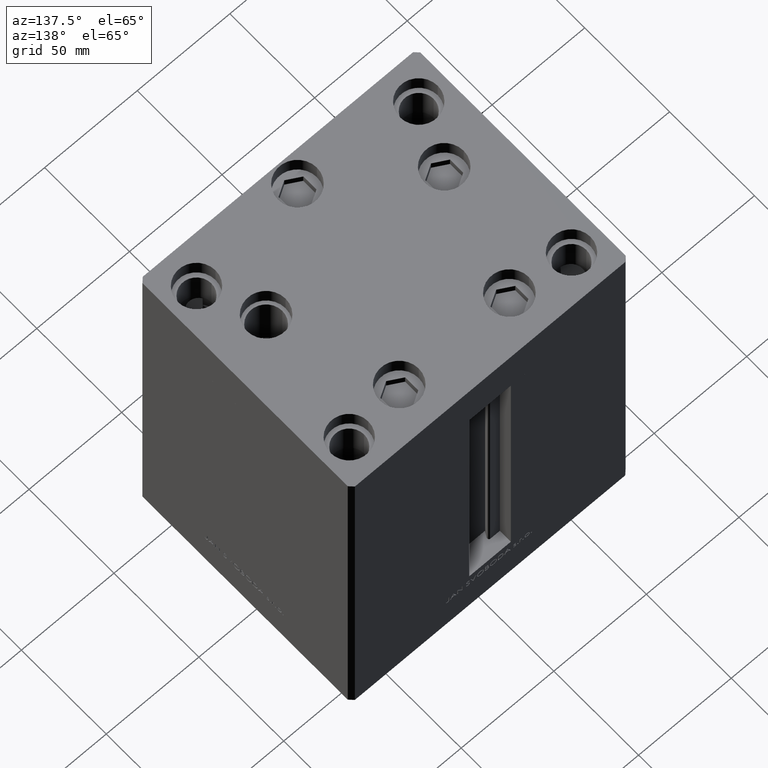
[diagram: clean part render]
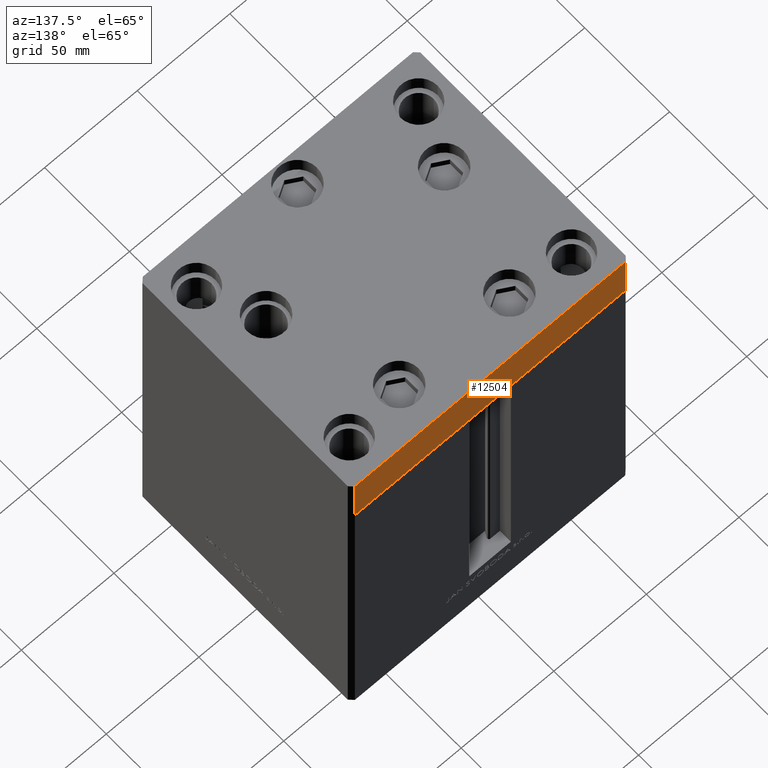
[diagram: same view with one face highlighted and labeled with its STEP entity id]
A machine part, auxiliary view. The second image highlights one B-rep face of the part: STEP entity #12504.
In plain terms, the highlighted planar face has unit normal (-0, 1, 0).
Its self-contained STEP definition (entity closure, byte-faithful):
#617 = LINE ( 'NONE', #15641, #45635 ) ;
#4024 = ORIENTED_EDGE ( 'NONE', *, *, #23906, .T. ) ;
#5116 = CARTESIAN_POINT ( 'NONE',  ( 72.99999999999992895, 62.50000000000001421, 0.000000000000000000 ) ) ;
#5562 = VERTEX_POINT ( 'NONE', #5116 ) ;
#8228 = CARTESIAN_POINT ( 'NONE',  ( 72.99999999999992895, 62.50000000000001421, -27.00000000000000000 ) ) ;
#9597 = ORIENTED_EDGE ( 'NONE', *, *, #18663, .F. ) ;
#11170 = CARTESIAN_POINT ( 'NONE',  ( 72.99999999999992895, 62.50000000000001421, -27.00000000000000000 ) ) ;
#11217 = LINE ( 'NONE', #26975, #20873 ) ;
#11292 = CARTESIAN_POINT ( 'NONE',  ( -73.00000000000001421, 62.49999999999998579, 0.000000000000000000 ) ) ;
#12080 = DIRECTION ( 'NONE',  ( 0.000000000000000000, 0.000000000000000000, 1.000000000000000000 ) ) ;
#12229 = AXIS2_PLACEMENT_3D ( 'NONE', #16190, #27142, #31713 ) ;
#12504 = ADVANCED_FACE ( 'NONE', ( #20004 ), #31969, .T. ) ;
#15222 = DIRECTION ( 'NONE',  ( -1.000000000000000000, -1.901066822988282689E-16, 0.000000000000000000 ) ) ;
#15641 = CARTESIAN_POINT ( 'NONE',  ( 72.99999999999992895, 62.50000000000001421, -27.00000000000000000 ) ) ;
#16190 = CARTESIAN_POINT ( 'NONE',  ( 72.99999999999992895, 62.50000000000001421, -27.00000000000000000 ) ) ;
#17156 = DIRECTION ( 'NONE',  ( 0.000000000000000000, 0.000000000000000000, 1.000000000000000000 ) ) ;
#18059 = EDGE_LOOP ( 'NONE', ( #38545, #9597, #45596, #4024 ) ) ;
#18663 = EDGE_CURVE ( 'NONE', #33058, #5562, #617, .T. ) ;
#20004 = FACE_OUTER_BOUND ( 'NONE', #18059, .T. ) ;
#20563 = VERTEX_POINT ( 'NONE', #11292 ) ;
#20873 = VECTOR ( 'NONE', #42465, 1000.000000000000000 ) ;
#21914 = VECTOR ( 'NONE', #15222, 1000.000000000000000 ) ;
#22955 = VECTOR ( 'NONE', #17156, 1000.000000000000000 ) ;
#23906 = EDGE_CURVE ( 'NONE', #30056, #20563, #47664, .T. ) ;
#26975 = CARTESIAN_POINT ( 'NONE',  ( 72.99999999999992895, 62.50000000000001421, 0.000000000000000000 ) ) ;
#27142 = DIRECTION ( 'NONE',  ( -1.901066822988282936E-16, 1.000000000000000000, 0.000000000000000000 ) ) ;
#30056 = VERTEX_POINT ( 'NONE', #46449 ) ;
#31713 = DIRECTION ( 'NONE',  ( -1.000000000000000000, -1.901066822988282936E-16, 0.000000000000000000 ) ) ;
#31969 = PLANE ( 'NONE',  #12229 ) ;
#32434 = CARTESIAN_POINT ( 'NONE',  ( -73.00000000000001421, 62.49999999999998579, -27.00000000000000000 ) ) ;
#33058 = VERTEX_POINT ( 'NONE', #8228 ) ;
#34118 = EDGE_CURVE ( 'NONE', #5562, #20563, #11217, .T. ) ;
#38545 = ORIENTED_EDGE ( 'NONE', *, *, #34118, .F. ) ;
#42123 = EDGE_CURVE ( 'NONE', #33058, #30056, #50036, .T. ) ;
#42465 = DIRECTION ( 'NONE',  ( -1.000000000000000000, -1.901066822988282689E-16, 0.000000000000000000 ) ) ;
#45596 = ORIENTED_EDGE ( 'NONE', *, *, #42123, .T. ) ;
#45635 = VECTOR ( 'NONE', #12080, 1000.000000000000000 ) ;
#46449 = CARTESIAN_POINT ( 'NONE',  ( -73.00000000000001421, 62.49999999999998579, -27.00000000000000000 ) ) ;
#47664 = LINE ( 'NONE', #32434, #22955 ) ;
#50036 = LINE ( 'NONE', #11170, #21914 ) ;